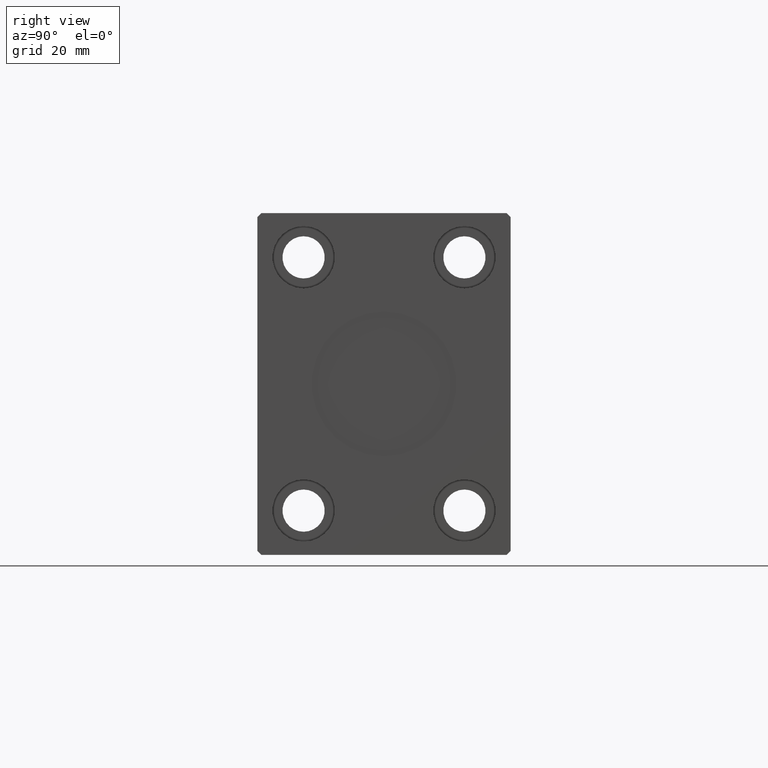
[diagram: clean part render]
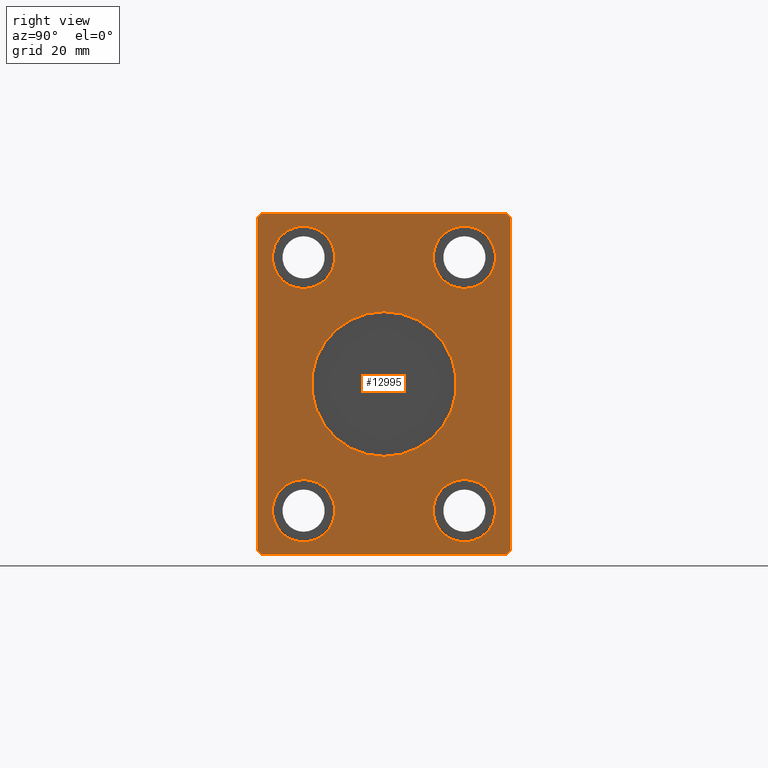
[diagram: same view with one face highlighted and labeled with its STEP entity id]
A machine part, right view. The second image highlights one B-rep face of the part: STEP entity #12995.
In plain terms, the highlighted planar face has unit normal (1, 0, 0).
Its self-contained STEP definition (entity closure, byte-faithful):
#75 = FACE_BOUND ( 'NONE', #6820, .T. ) ;
#328 = DIRECTION ( 'NONE',  ( 0.000000000000000000, 0.000000000000000000, 1.000000000000000000 ) ) ;
#436 = AXIS2_PLACEMENT_3D ( 'NONE', #8911, #40827, #328 ) ;
#547 = CARTESIAN_POINT ( 'NONE',  ( 121.0000000000000000, -30.50000000000000355, 42.49999999999999289 ) ) ;
#689 = VERTEX_POINT ( 'NONE', #42933 ) ;
#1135 = AXIS2_PLACEMENT_3D ( 'NONE', #6809, #30872, #3444 ) ;
#1208 = VERTEX_POINT ( 'NONE', #547 ) ;
#1386 = VECTOR ( 'NONE', #25097, 1000.000000000000000 ) ;
#1885 = CARTESIAN_POINT ( 'NONE',  ( 121.0000000000000000, -19.99999999999999645, 31.50000000000001421 ) ) ;
#1984 = LINE ( 'NONE', #11888, #22122 ) ;
#2257 = CARTESIAN_POINT ( 'NONE',  ( 121.0000000000000000, 2.204364238465235428E-15, 18.00000000000000000 ) ) ;
#2631 = DIRECTION ( 'NONE',  ( 0.000000000000000000, 0.000000000000000000, -1.000000000000000000 ) ) ;
#2767 = VECTOR ( 'NONE', #36970, 1000.000000000000114 ) ;
#2906 = DIRECTION ( 'NONE',  ( 0.000000000000000000, 0.000000000000000000, 1.000000000000000000 ) ) ;
#3119 = CARTESIAN_POINT ( 'NONE',  ( 121.0000000000000000, -30.50000000000000711, -42.50000000000000711 ) ) ;
#3277 = EDGE_CURVE ( 'NONE', #12490, #7968, #35616, .T. ) ;
#3444 = DIRECTION ( 'NONE',  ( 0.000000000000000000, 0.000000000000000000, -1.000000000000000000 ) ) ;
#3563 = CARTESIAN_POINT ( 'NONE',  ( 121.0000000000000000, 30.50000000000001776, -42.50000000000000711 ) ) ;
#3683 = ORIENTED_EDGE ( 'NONE', *, *, #27286, .T. ) ;
#4061 = CARTESIAN_POINT ( 'NONE',  ( 121.0000000000000000, 30.50000000000001421, 42.49999999999999289 ) ) ;
#4505 = DIRECTION ( 'NONE',  ( 0.000000000000000000, 0.7071067811865462405, 0.7071067811865489050 ) ) ;
#5166 = CARTESIAN_POINT ( 'NONE',  ( 121.0000000000000000, -31.50000000000000000, 41.49999999999999289 ) ) ;
#6120 = EDGE_CURVE ( 'NONE', #36583, #25137, #32146, .T. ) ;
#6453 = CARTESIAN_POINT ( 'NONE',  ( 121.0000000000000000, 20.00000000000000355, 39.25000000000001421 ) ) ;
#6712 = DIRECTION ( 'NONE',  ( 0.000000000000000000, 1.000000000000000000, 0.000000000000000000 ) ) ;
#6809 = CARTESIAN_POINT ( 'NONE',  ( 121.0000000000000000, 0.000000000000000000, 0.000000000000000000 ) ) ;
#6820 = EDGE_LOOP ( 'NONE', ( #12111, #29845 ) ) ;
#7157 = AXIS2_PLACEMENT_3D ( 'NONE', #44391, #20308, #33361 ) ;
#7336 = EDGE_CURVE ( 'NONE', #25137, #36583, #19194, .T. ) ;
#7398 = ORIENTED_EDGE ( 'NONE', *, *, #23992, .T. ) ;
#7418 = VERTEX_POINT ( 'NONE', #6453 ) ;
#7674 = EDGE_CURVE ( 'NONE', #10878, #34867, #41974, .T. ) ;
#7968 = VERTEX_POINT ( 'NONE', #2257 ) ;
#8074 = VERTEX_POINT ( 'NONE', #25878 ) ;
#8348 = CARTESIAN_POINT ( 'NONE',  ( 121.0000000000000000, -19.99999999999999645, -31.49999999999998579 ) ) ;
#8440 = ORIENTED_EDGE ( 'NONE', *, *, #30692, .T. ) ;
#8579 = DIRECTION ( 'NONE',  ( 0.000000000000000000, -0.7071067811865462405, -0.7071067811865489050 ) ) ;
#8650 = DIRECTION ( 'NONE',  ( -1.000000000000000000, -0.000000000000000000, -0.000000000000000000 ) ) ;
#8911 = CARTESIAN_POINT ( 'NONE',  ( 121.0000000000000000, 20.00000000000000355, -31.49999999999998579 ) ) ;
#8943 = CARTESIAN_POINT ( 'NONE',  ( 121.0000000000000000, -19.99999999999999645, -31.49999999999998579 ) ) ;
#9164 = EDGE_CURVE ( 'NONE', #689, #10878, #1984, .T. ) ;
#10108 = DIRECTION ( 'NONE',  ( 1.000000000000000000, -0.000000000000000000, -0.000000000000000000 ) ) ;
#10194 = FACE_OUTER_BOUND ( 'NONE', #35749, .T. ) ;
#10513 = LINE ( 'NONE', #3119, #17837 ) ;
#10878 = VERTEX_POINT ( 'NONE', #12694 ) ;
#10890 = EDGE_CURVE ( 'NONE', #21046, #8074, #26856, .T. ) ;
#11386 = LINE ( 'NONE', #38599, #1386 ) ;
#11691 = CARTESIAN_POINT ( 'NONE',  ( 121.0000000000000000, -31.50000000000000000, 41.49999999999999289 ) ) ;
#11888 = CARTESIAN_POINT ( 'NONE',  ( 121.0000000000000000, 31.50000000000001421, -41.50000000000000711 ) ) ;
#12111 = ORIENTED_EDGE ( 'NONE', *, *, #34179, .F. ) ;
#12490 = VERTEX_POINT ( 'NONE', #27214 ) ;
#12694 = CARTESIAN_POINT ( 'NONE',  ( 121.0000000000000000, 31.50000000000001421, 41.49999999999999289 ) ) ;
#12767 = EDGE_CURVE ( 'NONE', #37183, #689, #21579, .T. ) ;
#12868 = CIRCLE ( 'NONE', #23644, 7.750000000000000000 ) ;
#12995 = ADVANCED_FACE ( 'NONE', ( #19646, #30220, #16726, #10194, #44171, #75 ), #13135, .T. ) ;
#13135 = PLANE ( 'NONE',  #7157 ) ;
#13444 = AXIS2_PLACEMENT_3D ( 'NONE', #41314, #27804, #24215 ) ;
#14149 = CIRCLE ( 'NONE', #13444, 7.750000000000000000 ) ;
#14480 = AXIS2_PLACEMENT_3D ( 'NONE', #18439, #42740, #32392 ) ;
#15109 = CARTESIAN_POINT ( 'NONE',  ( 121.0000000000000000, -30.50000000000000355, 42.49999999999999289 ) ) ;
#15505 = ORIENTED_EDGE ( 'NONE', *, *, #12767, .T. ) ;
#16026 = EDGE_CURVE ( 'NONE', #18825, #21046, #18870, .T. ) ;
#16726 = FACE_BOUND ( 'NONE', #29851, .T. ) ;
#17069 = CARTESIAN_POINT ( 'NONE',  ( 121.0000000000000000, 20.00000000000000355, 31.50000000000001421 ) ) ;
#17542 = DIRECTION ( 'NONE',  ( 0.000000000000000000, 0.000000000000000000, -1.000000000000000000 ) ) ;
#17764 = CARTESIAN_POINT ( 'NONE',  ( 121.0000000000000000, 20.00000000000000355, 31.50000000000001421 ) ) ;
#17837 = VECTOR ( 'NONE', #6712, 1000.000000000000000 ) ;
#17947 = EDGE_CURVE ( 'NONE', #34211, #36531, #29168, .T. ) ;
#18439 = CARTESIAN_POINT ( 'NONE',  ( 121.0000000000000000, 0.000000000000000000, 0.000000000000000000 ) ) ;
#18825 = VERTEX_POINT ( 'NONE', #11691 ) ;
#18870 = LINE ( 'NONE', #5166, #28858 ) ;
#19194 = CIRCLE ( 'NONE', #44353, 7.750000000000000000 ) ;
#19522 = ORIENTED_EDGE ( 'NONE', *, *, #3277, .F. ) ;
#19539 = CARTESIAN_POINT ( 'NONE',  ( 121.0000000000000000, 20.00000000000000355, -31.49999999999998579 ) ) ;
#19646 = FACE_BOUND ( 'NONE', #26066, .T. ) ;
#20055 = DIRECTION ( 'NONE',  ( 0.000000000000000000, -0.7071067811865474617, 0.7071067811865474617 ) ) ;
#20226 = EDGE_CURVE ( 'NONE', #22496, #23602, #14149, .T. ) ;
#20308 = DIRECTION ( 'NONE',  ( 1.000000000000000000, 0.000000000000000000, 0.000000000000000000 ) ) ;
#20900 = DIRECTION ( 'NONE',  ( 1.000000000000000000, -0.000000000000000000, -0.000000000000000000 ) ) ;
#20963 = CARTESIAN_POINT ( 'NONE',  ( 121.0000000000000000, 20.00000000000000355, -23.74999999999998579 ) ) ;
#21046 = VERTEX_POINT ( 'NONE', #32750 ) ;
#21579 = LINE ( 'NONE', #35310, #35874 ) ;
#22122 = VECTOR ( 'NONE', #36380, 1000.000000000000000 ) ;
#22269 = VECTOR ( 'NONE', #8579, 999.9999999999998863 ) ;
#22496 = VERTEX_POINT ( 'NONE', #28403 ) ;
#22809 = ORIENTED_EDGE ( 'NONE', *, *, #16026, .T. ) ;
#23602 = VERTEX_POINT ( 'NONE', #26788 ) ;
#23644 = AXIS2_PLACEMENT_3D ( 'NONE', #1885, #8650, #32690 ) ;
#23992 = EDGE_CURVE ( 'NONE', #36531, #34211, #30773, .T. ) ;
#24198 = AXIS2_PLACEMENT_3D ( 'NONE', #8348, #42974, #42313 ) ;
#24206 = EDGE_LOOP ( 'NONE', ( #33890, #31067 ) ) ;
#24215 = DIRECTION ( 'NONE',  ( 0.000000000000000000, 0.000000000000000000, 1.000000000000000000 ) ) ;
#25097 = DIRECTION ( 'NONE',  ( 0.000000000000000000, -1.000000000000000000, 0.000000000000000000 ) ) ;
#25137 = VERTEX_POINT ( 'NONE', #30721 ) ;
#25318 = EDGE_CURVE ( 'NONE', #34867, #1208, #11386, .T. ) ;
#25385 = AXIS2_PLACEMENT_3D ( 'NONE', #17069, #10108, #31230 ) ;
#25878 = CARTESIAN_POINT ( 'NONE',  ( 121.0000000000000000, -30.50000000000000711, -42.50000000000000711 ) ) ;
#26066 = EDGE_LOOP ( 'NONE', ( #19522, #33971 ) ) ;
#26401 = CARTESIAN_POINT ( 'NONE',  ( 121.0000000000000000, -31.50000000000000000, -41.50000000000000711 ) ) ;
#26788 = CARTESIAN_POINT ( 'NONE',  ( 121.0000000000000000, -19.99999999999999645, 39.25000000000001421 ) ) ;
#26856 = LINE ( 'NONE', #26401, #2767 ) ;
#27214 = CARTESIAN_POINT ( 'NONE',  ( 121.0000000000000000, 0.000000000000000000, -18.00000000000000000 ) ) ;
#27286 = EDGE_CURVE ( 'NONE', #8074, #37183, #10513, .T. ) ;
#27804 = DIRECTION ( 'NONE',  ( -1.000000000000000000, -0.000000000000000000, -0.000000000000000000 ) ) ;
#27873 = AXIS2_PLACEMENT_3D ( 'NONE', #19539, #33042, #2906 ) ;
#28403 = CARTESIAN_POINT ( 'NONE',  ( 121.0000000000000000, -19.99999999999999645, 23.75000000000001421 ) ) ;
#28482 = ORIENTED_EDGE ( 'NONE', *, *, #25318, .T. ) ;
#28855 = CIRCLE ( 'NONE', #14480, 18.00000000000000000 ) ;
#28858 = VECTOR ( 'NONE', #35079, 1000.000000000000000 ) ;
#29168 = CIRCLE ( 'NONE', #436, 7.750000000000000000 ) ;
#29845 = ORIENTED_EDGE ( 'NONE', *, *, #41601, .F. ) ;
#29851 = EDGE_LOOP ( 'NONE', ( #30189, #7398 ) ) ;
#30189 = ORIENTED_EDGE ( 'NONE', *, *, #17947, .T. ) ;
#30220 = FACE_BOUND ( 'NONE', #34779, .T. ) ;
#30411 = ORIENTED_EDGE ( 'NONE', *, *, #32383, .T. ) ;
#30692 = EDGE_CURVE ( 'NONE', #23602, #22496, #12868, .T. ) ;
#30721 = CARTESIAN_POINT ( 'NONE',  ( 121.0000000000000000, -19.99999999999999645, -39.24999999999998579 ) ) ;
#30773 = CIRCLE ( 'NONE', #27873, 7.750000000000000000 ) ;
#30872 = DIRECTION ( 'NONE',  ( 1.000000000000000000, 0.000000000000000000, 0.000000000000000000 ) ) ;
#31067 = ORIENTED_EDGE ( 'NONE', *, *, #6120, .F. ) ;
#31230 = DIRECTION ( 'NONE',  ( 0.000000000000000000, 0.000000000000000000, -1.000000000000000000 ) ) ;
#31317 = CARTESIAN_POINT ( 'NONE',  ( 121.0000000000000000, -19.99999999999999645, -23.74999999999998579 ) ) ;
#31430 = VECTOR ( 'NONE', #20055, 1000.000000000000114 ) ;
#31851 = CARTESIAN_POINT ( 'NONE',  ( 121.0000000000000000, 31.50000000000001421, 41.49999999999999289 ) ) ;
#31972 = LINE ( 'NONE', #15109, #22269 ) ;
#32146 = CIRCLE ( 'NONE', #24198, 7.750000000000000000 ) ;
#32383 = EDGE_CURVE ( 'NONE', #1208, #18825, #31972, .T. ) ;
#32392 = DIRECTION ( 'NONE',  ( 0.000000000000000000, 0.000000000000000000, -1.000000000000000000 ) ) ;
#32690 = DIRECTION ( 'NONE',  ( 0.000000000000000000, 0.000000000000000000, 1.000000000000000000 ) ) ;
#32750 = CARTESIAN_POINT ( 'NONE',  ( 121.0000000000000000, -31.50000000000000000, -41.50000000000000711 ) ) ;
#33042 = DIRECTION ( 'NONE',  ( -1.000000000000000000, -0.000000000000000000, -0.000000000000000000 ) ) ;
#33361 = DIRECTION ( 'NONE',  ( 0.000000000000000000, 0.000000000000000000, -1.000000000000000000 ) ) ;
#33890 = ORIENTED_EDGE ( 'NONE', *, *, #7336, .F. ) ;
#33971 = ORIENTED_EDGE ( 'NONE', *, *, #36949, .F. ) ;
#34179 = EDGE_CURVE ( 'NONE', #37271, #7418, #35948, .T. ) ;
#34211 = VERTEX_POINT ( 'NONE', #38462 ) ;
#34779 = EDGE_LOOP ( 'NONE', ( #36865, #8440 ) ) ;
#34867 = VERTEX_POINT ( 'NONE', #4061 ) ;
#35079 = DIRECTION ( 'NONE',  ( 0.000000000000000000, 0.000000000000000000, -1.000000000000000000 ) ) ;
#35310 = CARTESIAN_POINT ( 'NONE',  ( 121.0000000000000000, 30.50000000000001776, -42.50000000000000711 ) ) ;
#35616 = CIRCLE ( 'NONE', #1135, 18.00000000000000000 ) ;
#35749 = EDGE_LOOP ( 'NONE', ( #35811, #28482, #30411, #22809, #40442, #3683, #15505, #41648 ) ) ;
#35811 = ORIENTED_EDGE ( 'NONE', *, *, #7674, .T. ) ;
#35874 = VECTOR ( 'NONE', #4505, 999.9999999999998863 ) ;
#35948 = CIRCLE ( 'NONE', #40276, 7.750000000000000000 ) ;
#36380 = DIRECTION ( 'NONE',  ( 0.000000000000000000, 0.000000000000000000, 1.000000000000000000 ) ) ;
#36531 = VERTEX_POINT ( 'NONE', #20963 ) ;
#36583 = VERTEX_POINT ( 'NONE', #31317 ) ;
#36865 = ORIENTED_EDGE ( 'NONE', *, *, #20226, .T. ) ;
#36949 = EDGE_CURVE ( 'NONE', #7968, #12490, #28855, .T. ) ;
#36970 = DIRECTION ( 'NONE',  ( 0.000000000000000000, 0.7071067811865451302, -0.7071067811865500152 ) ) ;
#37027 = DIRECTION ( 'NONE',  ( 1.000000000000000000, -0.000000000000000000, -0.000000000000000000 ) ) ;
#37183 = VERTEX_POINT ( 'NONE', #3563 ) ;
#37271 = VERTEX_POINT ( 'NONE', #38871 ) ;
#38462 = CARTESIAN_POINT ( 'NONE',  ( 121.0000000000000000, 20.00000000000000355, -39.24999999999998579 ) ) ;
#38599 = CARTESIAN_POINT ( 'NONE',  ( 121.0000000000000000, 30.50000000000001421, 42.49999999999999289 ) ) ;
#38871 = CARTESIAN_POINT ( 'NONE',  ( 121.0000000000000000, 20.00000000000000355, 23.75000000000001421 ) ) ;
#40276 = AXIS2_PLACEMENT_3D ( 'NONE', #17764, #20900, #17542 ) ;
#40442 = ORIENTED_EDGE ( 'NONE', *, *, #10890, .T. ) ;
#40475 = CIRCLE ( 'NONE', #25385, 7.750000000000000000 ) ;
#40827 = DIRECTION ( 'NONE',  ( -1.000000000000000000, -0.000000000000000000, -0.000000000000000000 ) ) ;
#41314 = CARTESIAN_POINT ( 'NONE',  ( 121.0000000000000000, -19.99999999999999645, 31.50000000000001421 ) ) ;
#41601 = EDGE_CURVE ( 'NONE', #7418, #37271, #40475, .T. ) ;
#41648 = ORIENTED_EDGE ( 'NONE', *, *, #9164, .T. ) ;
#41974 = LINE ( 'NONE', #31851, #31430 ) ;
#42313 = DIRECTION ( 'NONE',  ( 0.000000000000000000, 0.000000000000000000, -1.000000000000000000 ) ) ;
#42740 = DIRECTION ( 'NONE',  ( 1.000000000000000000, 0.000000000000000000, 0.000000000000000000 ) ) ;
#42933 = CARTESIAN_POINT ( 'NONE',  ( 121.0000000000000000, 31.50000000000001421, -41.50000000000000711 ) ) ;
#42974 = DIRECTION ( 'NONE',  ( 1.000000000000000000, -0.000000000000000000, -0.000000000000000000 ) ) ;
#44171 = FACE_BOUND ( 'NONE', #24206, .T. ) ;
#44353 = AXIS2_PLACEMENT_3D ( 'NONE', #8943, #37027, #2631 ) ;
#44391 = CARTESIAN_POINT ( 'NONE',  ( 121.0000000000000000, 0.000000000000000000, 0.000000000000000000 ) ) ;